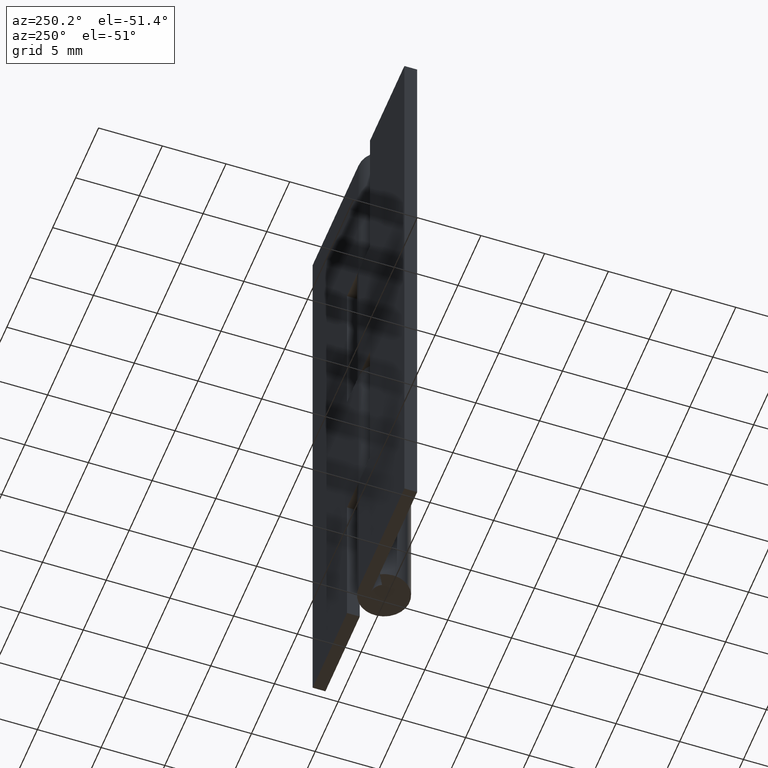
[diagram: clean part render]
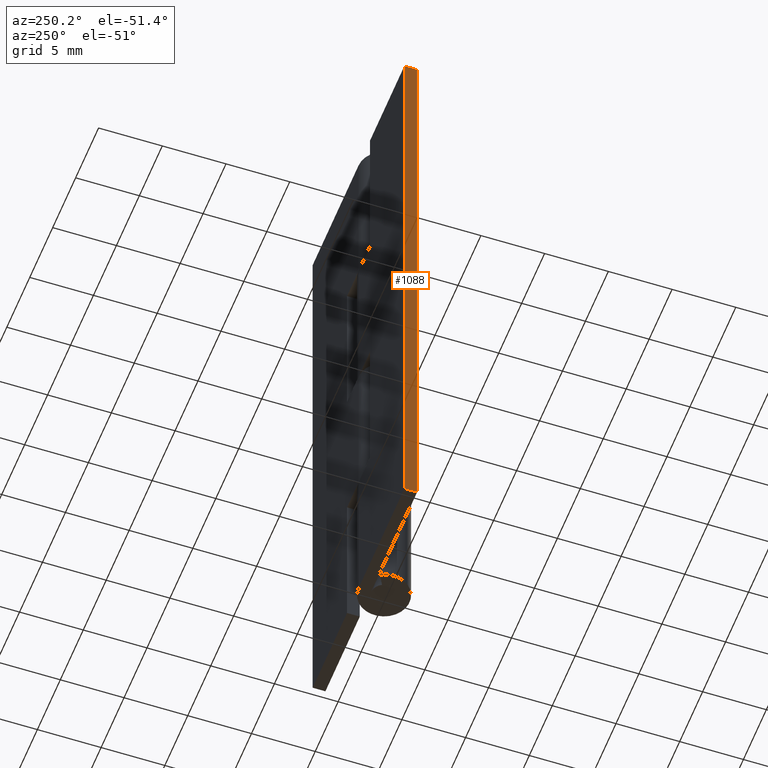
[diagram: same view with one face highlighted and labeled with its STEP entity id]
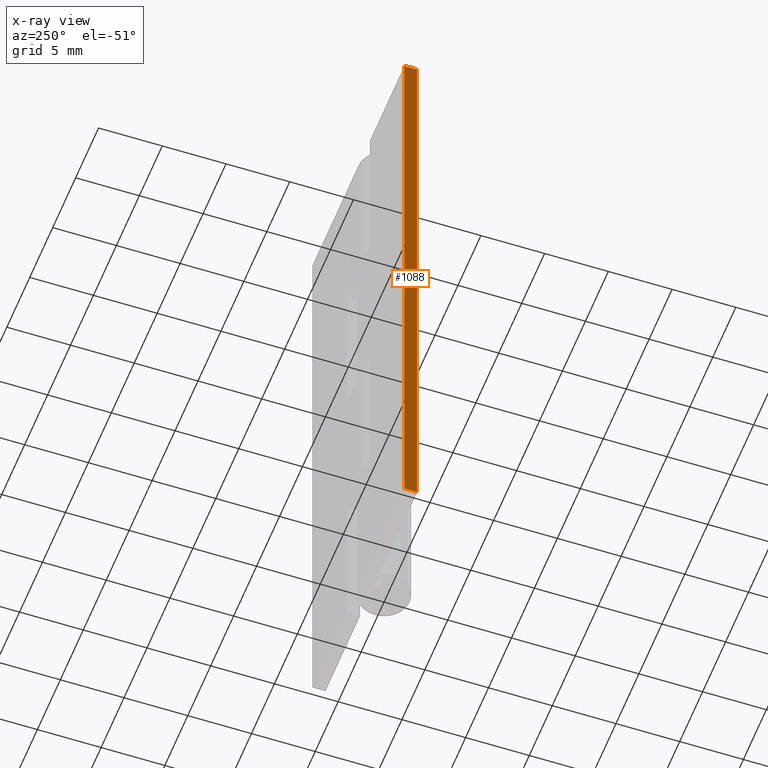
[diagram: x-ray of the same camera — body ghosted, the highlighted face saturated]
A machine part, auxiliary view. The second image highlights one B-rep face of the part: STEP entity #1088.
The next image is the same camera in x-ray: the body ghosted, the highlighted face saturated — about 0% of this face is hidden behind the body in this view.
In plain terms, the highlighted face is a freeform B-spline surface patch.
Its self-contained STEP definition (entity closure, byte-faithful):
#988=CARTESIAN_POINT('',(-10.0,1.0,0.0));
#989=VERTEX_POINT('',#988);
#990=CARTESIAN_POINT('',(-10.0,2.0,0.0));
#991=VERTEX_POINT('',#990);
#992=CARTESIAN_POINT('',(-10.0,1.0,0.0));
#993=CARTESIAN_POINT('',(-10.0,2.0,0.0));
#994=QUASI_UNIFORM_CURVE('',1,(#992,#993),.UNSPECIFIED.,.F.,.U.);
#995=EDGE_CURVE('',#989,#991,#994,.T.);
#1061=CARTESIAN_POINT('',(-10.0,0.950050001938194,-2.497499903090299));
#1062=CARTESIAN_POINT('',(-10.0,0.950050001938194,52.497501244194808));
#1063=CARTESIAN_POINT('',(-10.0,2.049950024883896,-2.497499903090299));
#1064=CARTESIAN_POINT('',(-10.0,2.049950024883896,52.497501244194808));
#1065=B_SPLINE_SURFACE_WITH_KNOTS('',1,1,((#1061,#1063),(#1062,#1064)),.UNSPECIFIED.,.F.,.F.,.U.,(2,2),(2,2),(0.0,54.995001147285109),(0.041708334948495,0.958291687403247),.UNSPECIFIED.);
#1066=ORIENTED_EDGE('',*,*,#995,.F.);
#1067=CARTESIAN_POINT('',(-10.0,1.0,50.0));
#1068=VERTEX_POINT('',#1067);
#1069=CARTESIAN_POINT('',(-10.0,1.0,50.0));
#1070=CARTESIAN_POINT('',(-10.0,1.0,0.0));
#1071=QUASI_UNIFORM_CURVE('',1,(#1069,#1070),.UNSPECIFIED.,.F.,.U.);
#1072=EDGE_CURVE('',#1068,#989,#1071,.T.);
#1073=ORIENTED_EDGE('',*,*,#1072,.F.);
#1074=CARTESIAN_POINT('',(-10.0,2.0,50.0));
#1075=VERTEX_POINT('',#1074);
#1076=CARTESIAN_POINT('',(-10.0,1.0,50.0));
#1077=CARTESIAN_POINT('',(-10.0,2.0,50.0));
#1078=QUASI_UNIFORM_CURVE('',1,(#1076,#1077),.UNSPECIFIED.,.F.,.U.);
#1079=EDGE_CURVE('',#1068,#1075,#1078,.T.);
#1080=ORIENTED_EDGE('',*,*,#1079,.T.);
#1081=CARTESIAN_POINT('',(-10.0,2.0,50.0));
#1082=CARTESIAN_POINT('',(-10.0,2.0,0.0));
#1083=QUASI_UNIFORM_CURVE('',1,(#1081,#1082),.UNSPECIFIED.,.F.,.U.);
#1084=EDGE_CURVE('',#1075,#991,#1083,.T.);
#1085=ORIENTED_EDGE('',*,*,#1084,.T.);
#1086=EDGE_LOOP('',(#1066,#1073,#1080,#1085));
#1087=FACE_OUTER_BOUND('',#1086,.T.);
#1088=ADVANCED_FACE('',(#1087),#1065,.T.);